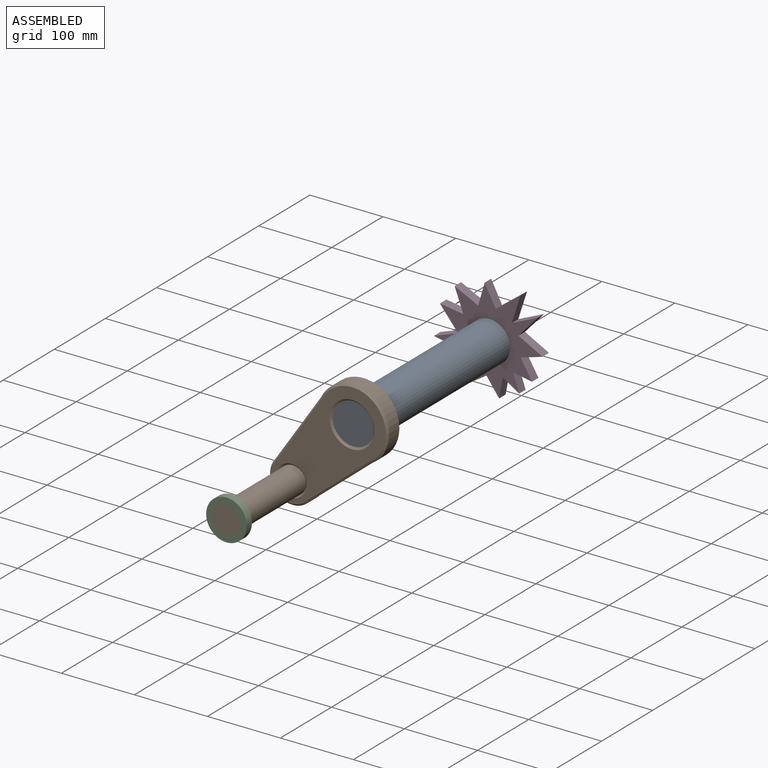
[diagram: assembled view]
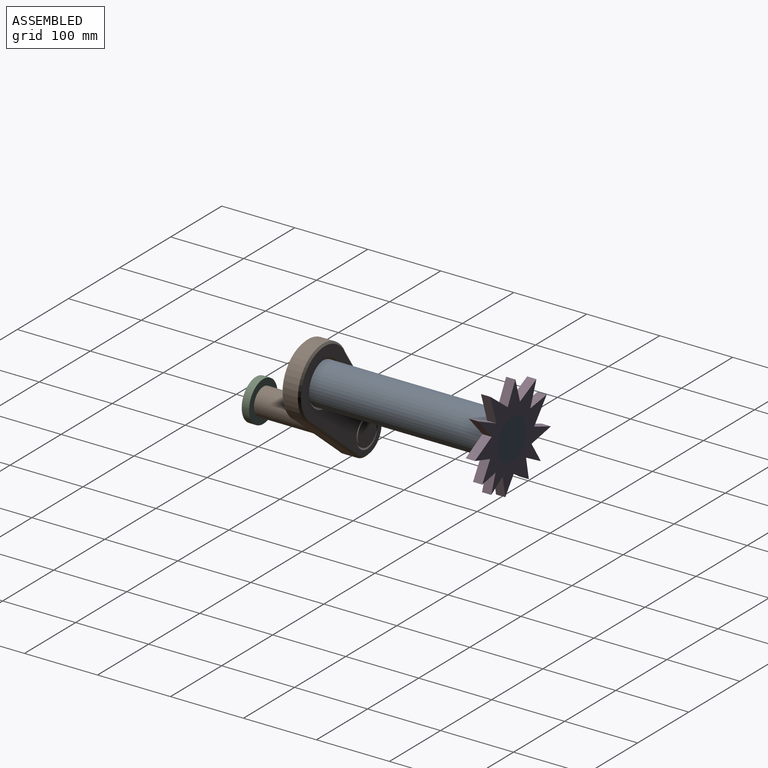
[diagram: assembled view, second angle]
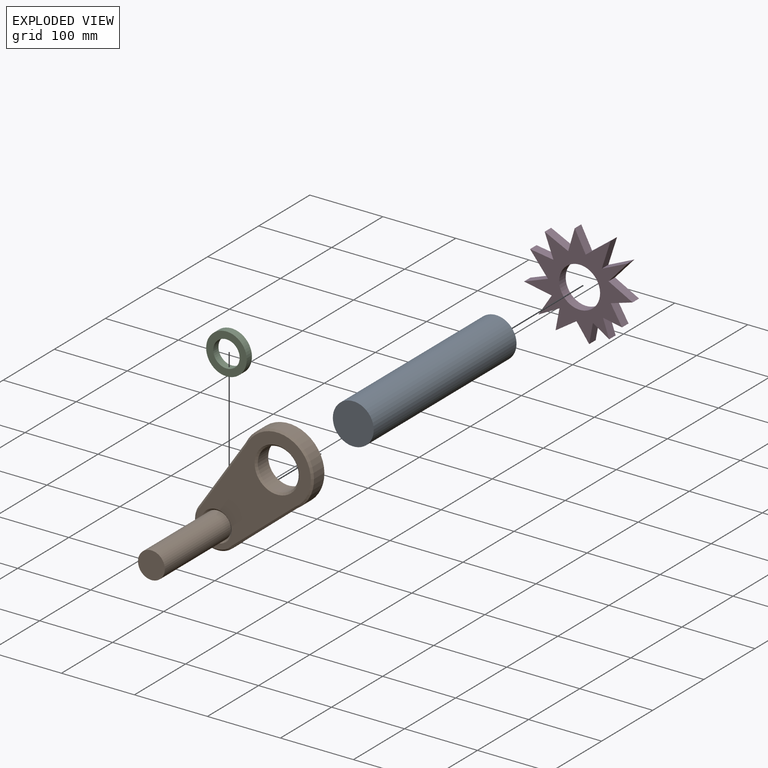
[diagram: exploded view]
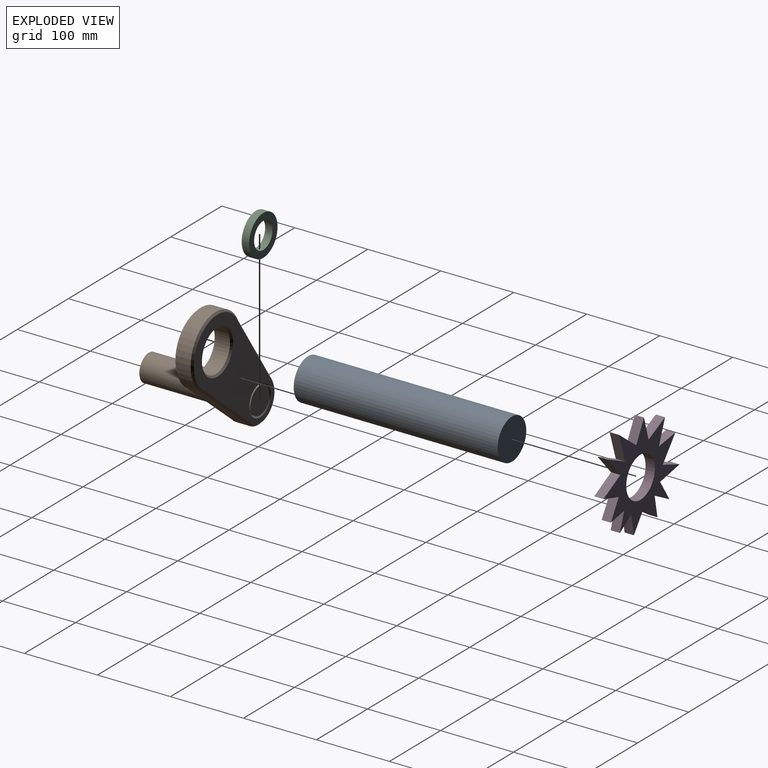
[diagram: exploded view, second angle]
ASSEMBLY  parts=4 mates=3
PART A: 3 faces, bbox 56x279.4x56 mm
  f0: cylinder r=28.02mm len=279.4mm, axis (0,-1,0), area 49185.5mm2, adj f1,f2
  f1: plane 56.04x56.04mm, normal (0,-1,0), area 2466.1mm2, adj f0
  f2: plane 56.04x56.04mm, normal (0,1,0), area 2466.1mm2, adj f0
PART B: 23 faces, bbox 203.6x152.4x97.9 mm
  f0: plane 110.92x20.32mm, normal (0.14,0,-0.99), area 2277.6mm2, adj f1,f3,f10,f14
  f1: cylinder r=30.86mm len=61.71mm, axis (0,-1,0), area 1943.8mm2, adj f0,f2,f9,f16
  f2: plane 109.94x20.32mm, normal (0.14,0,0.99), area 2257.6mm2, adj f1,f3,f7,f15
  f3: cylinder r=48.96mm len=97.93mm, axis (0,-1,0), area 3701.2mm2, adj f0,f2,f8,f13
  f4: cylinder r=28.06mm len=56.11mm, axis (0,-1,0), area 3582mm2, adj f12,f18
  f5: plane 198.49x92.85mm, normal (0,-1,0), area 9589.9mm2, adj f13,f14,f15,f16,f17,f18
  f6: plane 198.49x92.85mm, normal (0,1,0), area 9589.9mm2, adj f7,f8,f9,f10,f11,f12
  f7: plane 110.5x18.6mm, normal (0.1,0.71,0.7), area 399.8mm2, adj f2,f6,f8,f9
  f8: cone r=48.96mm half-angle=45deg, axis (0,-1,0), area 638mm2, adj f3,f6,f7,f10
  f9: cone r=30.86mm half-angle=45deg, axis (0,-1,0), area 330mm2, adj f1,f6,f7,f10
  f10: plane 111.48x18.64mm, normal (0.1,0.71,-0.7), area 403.2mm2, adj f0,f6,f8,f9
  f11: cone r=20.94mm half-angle=45deg, axis (0,1,0), area 443.9mm2, adj f6,f21
  f12: cone r=30.6mm half-angle=45deg, axis (0,1,0), area 661.9mm2, adj f4,f6
  f13: cone r=46.42mm half-angle=45deg, axis (0,1,0), area 638mm2, adj f3,f5,f14,f15
  f14: plane 111.48x18.64mm, normal (0.1,-0.71,-0.7), area 403.2mm2, adj f0,f5,f13,f16
  f15: plane 110.5x18.6mm, normal (0.1,-0.71,0.7), area 399.8mm2, adj f2,f5,f13,f16
  f16: cone r=28.32mm half-angle=45deg, axis (0,1,0), area 330mm2, adj f1,f5,f14,f15
  f17: cone r=18.4mm half-angle=45deg, axis (0,-1,0), area 443.9mm2, adj f5,f20
  f18: cone r=28.06mm half-angle=45deg, axis (0,-1,0), area 661.9mm2, adj f4,f5
  f19: plane 36.8x36.8mm, normal (0,-1,0), area 1063.5mm2, adj f20
  f20: cylinder r=18.4mm len=129.54mm, axis (0,-1,0), area 14975.6mm2, adj f17,f19
  f21: cylinder r=18.4mm len=36.8mm, axis (0,-1,0), area 293.6mm2, adj f11,f22
  f22: plane 36.8x36.8mm, normal (0,1,0), area 1063.5mm2, adj f21
PART C: 4 faces, bbox 55.6x10.2x55.6 mm
  f0: cylinder r=18.08mm len=36.17mm, axis (0,-1,0), area 1154.4mm2, adj f2,f3
  f1: cylinder r=27.81mm len=55.62mm, axis (0,-1,0), area 1775.2mm2, adj f2,f3
  f2: plane 55.62x55.62mm, normal (0,-1,0), area 1402mm2, adj f0,f1
  f3: plane 55.62x55.62mm, normal (0,1,0), area 1402mm2, adj f0,f1
PART D: 27 faces, bbox 153.6x12.7x139.1 mm
  f0: plane 35.94x16.27mm, normal (-0.41,0,0.91), area 501mm2, adj f1,f24,f25,f26
  f1: plane 42.19x12.7mm, normal (-0.18,0,-0.98), area 545mm2, adj f0,f2,f25,f26
  f2: plane 30.32x12.7mm, normal (-0.94,0,0.35), area 410.3mm2, adj f1,f3,f25,f26
  f3: plane 28.87x13.98mm, normal (0.44,0,-0.9), area 407.3mm2, adj f2,f4,f25,f26
  f4: plane 34.27x12.7mm, normal (-0.96,0,-0.28), area 453.8mm2, adj f3,f5,f25,f26
  f5: plane 30.11x15.38mm, normal (0.89,0,-0.45), area 429.3mm2, adj f4,f6,f25,f26
  f6: plane 26.92x18.04mm, normal (-0.83,0,-0.56), area 411.6mm2, adj f5,f7,f25,f26
  f7: plane 38.56x12.7mm, normal (0.99,0,-0.15), area 495.5mm2, adj f6,f8,f25,f26
  f8: plane 31.1x16.27mm, normal (-0.46,0,-0.89), area 445.7mm2, adj f7,f9,f25,f26
  f9: plane 33.01x20.25mm, normal (0.85,0,0.52), area 491.8mm2, adj f8,f10,f25,f26
  f10: plane 33.35x12.7mm, normal (0.16,0,-0.99), area 429.5mm2, adj f9,f11,f25,f26
  f11: plane 30.87x12.7mm, normal (0.34,0,0.94), area 416.4mm2, adj f10,f12,f25,f26
  f12: plane 24.96x15.31mm, normal (0.52,0,-0.85), area 371.9mm2, adj f11,f13,f25,f26
  f13: plane 33.4x12.7mm, normal (0.25,0,0.97), area 437.6mm2, adj f12,f14,f25,f26
  f14: plane 28.82x12.7mm, normal (0.98,0,-0.2), area 373.7mm2, adj f13,f15,f25,f26
  f15: plane 23.89x14.65mm, normal (-0.52,0,0.85), area 355.9mm2, adj f14,f16,f25,f26
  f16: plane 26.07x12.7mm, normal (0.99,0,0.16), area 335.7mm2, adj f15,f17,f25,f26
  f17: plane 22.61x12.7mm, normal (-0.88,0,0.48), area 327.5mm2, adj f16,f18,f25,f26
  f18: plane 22.61x13.87mm, normal (0.85,0,0.52), area 336.9mm2, adj f17,f19,f25,f26
  f19: plane 28.81x12.7mm, normal (-0.96,0,0.29), area 382.3mm2, adj f18,f20,f25,f26
  f20: plane 26.73x16.2mm, normal (0.52,0,0.86), area 396.9mm2, adj f19,f21,f25,f26
  f21: plane 36.09x12.7mm, normal (-0.97,0,-0.25), area 473.3mm2, adj f20,f22,f25,f26
  f22: plane 39.52x12.7mm, normal (0,0,1), area 501.8mm2, adj f21,f24,f25,f26
  f23: cylinder r=28.01mm len=56.03mm, axis (0,-1,0), area 2235.4mm2, adj f25,f26
  f24: plane 35.94x15.67mm, normal (-0.4,0,-0.92), area 497.9mm2, adj f0,f22,f25,f26
  f25: plane 153.57x139.13mm, normal (0,-1,0), area 7363.2mm2, adj f0,f1,f2,f3,f4,f5,f6,f7
  f26: plane 153.57x139.13mm, normal (0,1,0), area 7363.2mm2, adj f0,f1,f2,f3,f4,f5,f6,f7
PLACE A rot(axis=(0,1,0),132.2deg) t=(248.25,27.53,-36.29)mm
PLACE B rot(axis=(0,1,0),132.2deg) t=(248.25,24.99,-36.29)mm
PLACE C rot(axis=(0,-1,0),137.8deg) t=(90.81,-117.25,-43.34)mm
PLACE D rot(axis=(0,1,0),132.2deg) t=(48.81,268.83,-138.87)mm
MATE fastened D.f23 <-> A.f0  axis (0,1,0) through (248.25,281.53,-36.29)mm
MATE fastened C.f0 <-> B.f11  axis (0,-1,0) through (165.19,-127.41,-128.01)mm
MATE fastened B.f4 <-> A.f0  axis (0,-1,0) through (248.25,2.13,-36.29)mm
